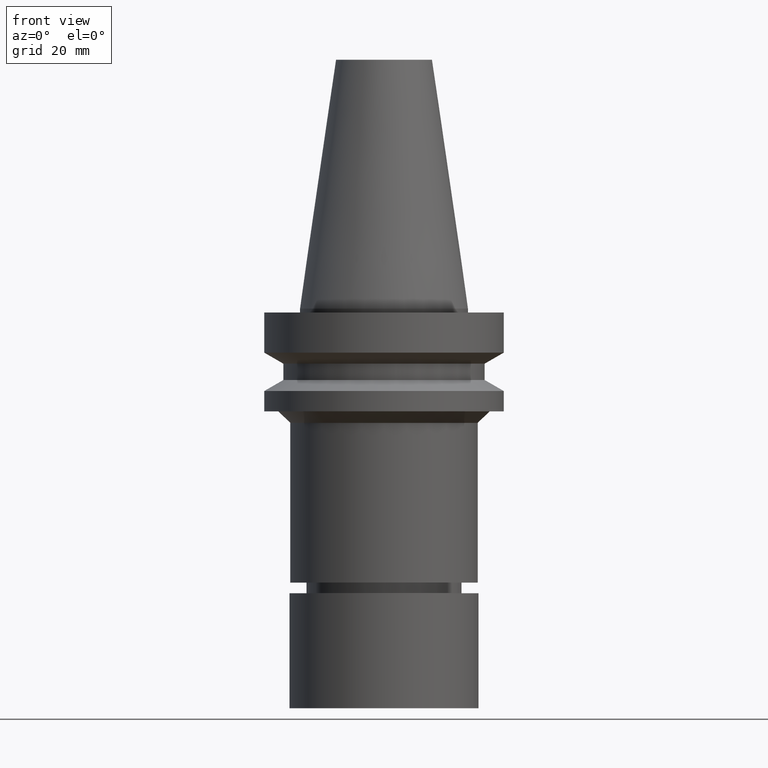
[diagram: clean part render]
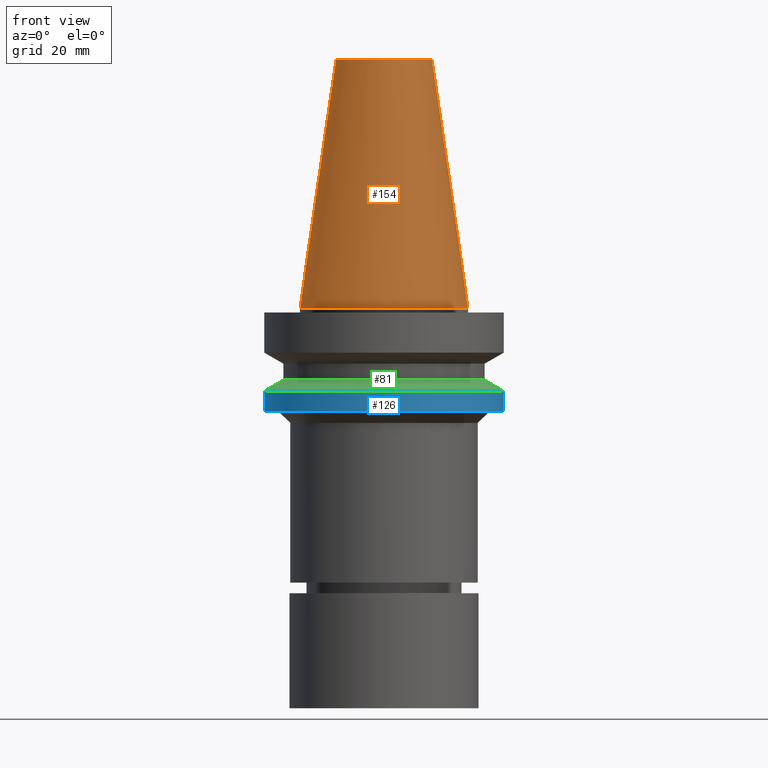
[diagram: same view with three faces highlighted in distinct colors, each labeled with its STEP entity id]
A machine part, front view with three faces highlighted in distinct colors.
Their STEP definitions:

[orange] entity #154 — the highlighted conical surface has half-angle 8.297 deg.
#95=EDGE_CURVE('Unnamed[1]',#231,#231,#232,.T.);
#145=EDGE_CURVE('Unnamed[1]',#309,#309,#310,.T.);
#154=ADVANCED_FACE('Unnamed[1]',(#321,#322),#323,.T.);
#231=VERTEX_POINT('',#414);
#232=CIRCLE('',#415,12.6875000000001);
#309=VERTEX_POINT('',#510);
#310=CIRCLE('',#511,22.225);
#321=FACE_BOUND('',#525,.T.);
#322=FACE_BOUND('',#526,.T.);
#323=CONICAL_SURFACE('',#527,17.45625,0.144812498238936);
#414=CARTESIAN_POINT('',(-4.00459503321185E-015,12.6875000000002,65.4000000000001));
#415=AXIS2_PLACEMENT_3D('',#611,#612,#613);
#510=CARTESIAN_POINT('',(1.71319921032766E-029,22.2250000000001,-2.8153873565375E-013));
#511=AXIS2_PLACEMENT_3D('',#698,#699,#700);
#525=EDGE_LOOP('',(#712));
#526=EDGE_LOOP('',(#713));
#527=AXIS2_PLACEMENT_3D('',#714,#715,#716);
#611=CARTESIAN_POINT('',(-4.00459503321185E-015,7.7149411856749E-014,65.4000000000001));
#612=DIRECTION('',(6.12323399573677E-017,-1.8933396912507E-017,-1.0));
#613=DIRECTION('',(-3.66781653447502E-033,1.0,-1.8933396912507E-017));
#698=CARTESIAN_POINT('',(1.74032777401202E-029,7.59111676986697E-014,-2.8421709430404E-013));
#699=DIRECTION('',(6.12323399573677E-017,-1.89333969125318E-017,-1.0));
#700=DIRECTION('',(-3.66781653447183E-033,1.0,-1.89333969125318E-017));
#712=ORIENTED_EDGE('',*,*,#145,.F.);
#713=ORIENTED_EDGE('',*,*,#95,.T.);
#714=CARTESIAN_POINT('',(-2.00229751660592E-015,7.65302897777094E-014,32.6999999999999));
#715=DIRECTION('',(6.12323399573677E-017,-1.89333969125691E-017,-1.0));
#716=DIRECTION('',(-3.66781653447042E-033,1.0,-1.89333969125691E-017));

[blue] entity #126 — the highlighted cylindrical surface (bore or boss wall) has radius 31.5 mm, axis along (0, -0, -1).
#126=ADVANCED_FACE('Unnamed[1]',(#279,#280),#281,.T.);
#128=EDGE_CURVE('Unnamed[1]',#283,#283,#284,.T.);
#174=EDGE_CURVE('Unnamed[1]',#353,#353,#354,.T.);
#279=FACE_BOUND('',#472,.T.);
#280=FACE_BOUND('',#473,.T.);
#281=CYLINDRICAL_SURFACE('',#474,31.5000000000005);
#283=VERTEX_POINT('',#477);
#284=CIRCLE('',#478,31.5000000000006);
#353=VERTEX_POINT('',#565);
#354=CIRCLE('',#566,31.5000000000003);
#472=EDGE_LOOP('',(#664));
#473=EDGE_LOOP('',(#665));
#474=AXIS2_PLACEMENT_3D('',#666,#667,#668);
#477=CARTESIAN_POINT('',(1.32473071268174E-015,31.5000000000007,-21.6344943473346));
#478=AXIS2_PLACEMENT_3D('',#669,#670,#671);
#565=CARTESIAN_POINT('',(1.65328282719222E-015,31.5000000000004,-27.0001575694036));
#566=AXIS2_PLACEMENT_3D('',#749,#750,#751);
#664=ORIENTED_EDGE('',*,*,#174,.F.);
#665=ORIENTED_EDGE('',*,*,#128,.T.);
#666=CARTESIAN_POINT('',(1.48900676993698E-015,7.54507581144486E-014,-24.3173259583691));
#667=DIRECTION('',(6.12323399573677E-017,-1.89333969125388E-017,-1.0));
#668=DIRECTION('',(-3.6678165344693E-033,1.0,-1.89333969125388E-017));
#669=CARTESIAN_POINT('',(1.32473071268174E-015,7.55015532301898E-014,-21.6344943473346));
#670=DIRECTION('',(6.12323399573677E-017,-1.89333969125387E-017,-1.0));
#671=DIRECTION('',(-3.66781653447498E-033,1.0,-1.89333969125387E-017));
#749=CARTESIAN_POINT('',(1.65328282719222E-015,7.53999629987074E-014,-27.0001575694036));
#750=DIRECTION('',(6.12323399573677E-017,-1.89333969125389E-017,-1.0));
#751=DIRECTION('',(-3.66781653446932E-033,1.0,-1.89333969125389E-017));

[green] entity #81 — the highlighted conical surface has half-angle 60 deg.
#81=ADVANCED_FACE('Unnamed[1]',(#208,#209),#210,.T.);
#91=EDGE_CURVE('Unnamed[1]',#225,#225,#226,.T.);
#128=EDGE_CURVE('Unnamed[1]',#283,#283,#284,.T.);
#208=FACE_BOUND('',#385,.T.);
#209=FACE_BOUND('',#386,.T.);
#210=CONICAL_SURFACE('',#387,29.0000000000003,1.04719755119651);
#225=VERTEX_POINT('',#406);
#226=CIRCLE('',#407,26.5);
#283=VERTEX_POINT('',#477);
#284=CIRCLE('',#478,31.5000000000006);
#385=EDGE_LOOP('',(#585));
#386=EDGE_LOOP('',(#586));
#387=AXIS2_PLACEMENT_3D('',#587,#588,#589);
#406=CARTESIAN_POINT('',(1.1479681728942E-015,26.5,-18.7477430013855));
#407=AXIS2_PLACEMENT_3D('',#605,#606,#607);
#477=CARTESIAN_POINT('',(1.32473071268174E-015,31.5000000000007,-21.6344943473346));
#478=AXIS2_PLACEMENT_3D('',#669,#670,#671);
#585=ORIENTED_EDGE('',*,*,#128,.F.);
#586=ORIENTED_EDGE('',*,*,#91,.T.);
#587=CARTESIAN_POINT('',(1.23634944278797E-015,7.55288812347001E-014,-20.1911186743601));
#588=DIRECTION('',(6.12323399573677E-017,-1.89333969124911E-017,-1.0));
#589=DIRECTION('',(-3.66781653447766E-033,1.0,-1.89333969124911E-017));
#605=CARTESIAN_POINT('',(1.1479681728942E-015,7.55562092392104E-014,-18.7477430013855));
#606=DIRECTION('',(6.12323399573677E-017,-1.89333969125565E-017,-1.0));
#607=DIRECTION('',(-3.66781653446732E-033,1.0,-1.89333969125565E-017));
#669=CARTESIAN_POINT('',(1.32473071268174E-015,7.55015532301898E-014,-21.6344943473346));
#670=DIRECTION('',(6.12323399573677E-017,-1.89333969125387E-017,-1.0));
#671=DIRECTION('',(-3.66781653447498E-033,1.0,-1.89333969125387E-017));